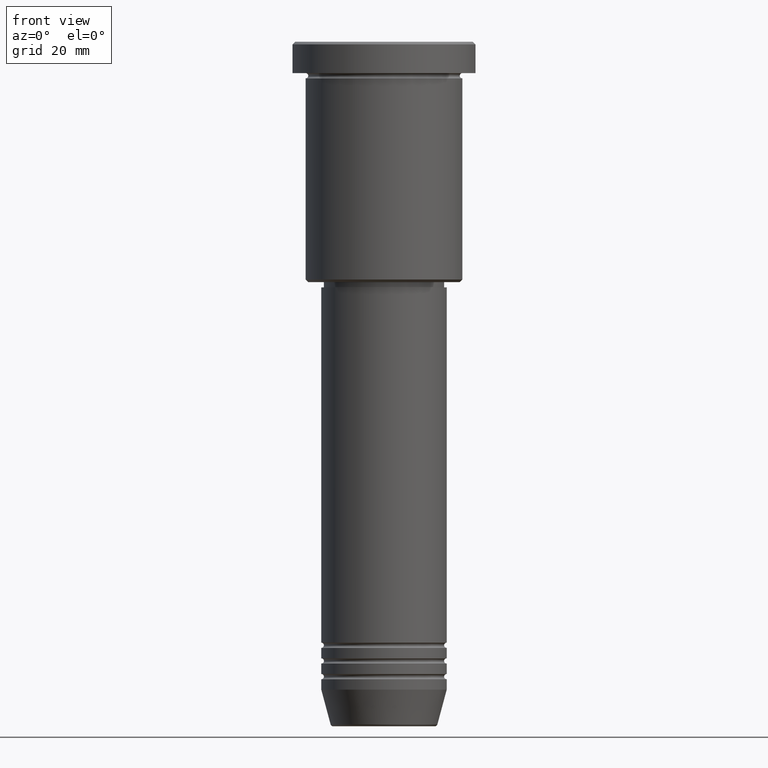
[diagram: clean part render]
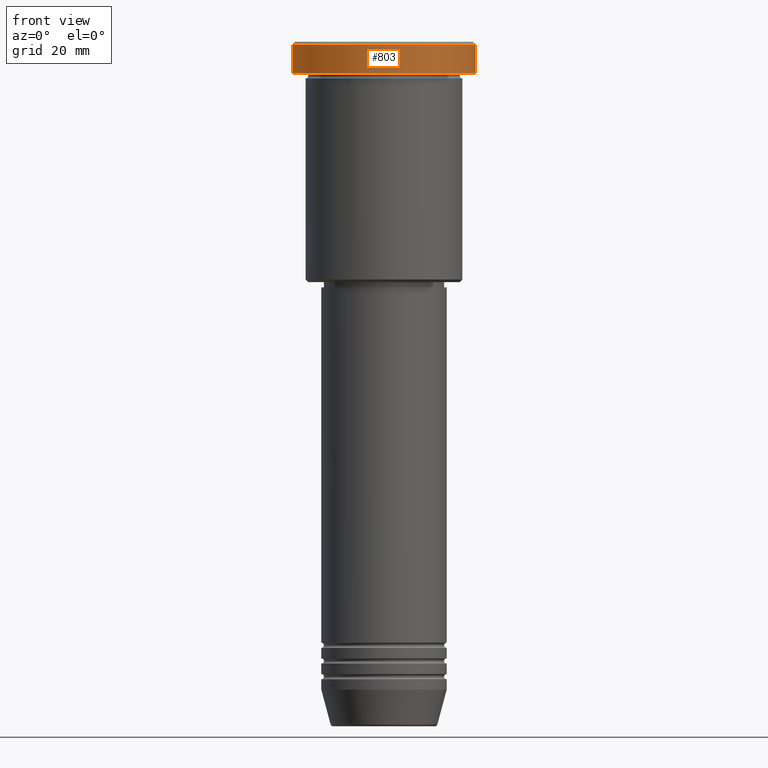
[diagram: same view with one face highlighted and labeled with its STEP entity id]
A machine part, front view. The second image highlights one B-rep face of the part: STEP entity #803.
In plain terms, the highlighted cylindrical surface (partial cylindrical patch) has radius 17.5 mm, axis along (-0, -0, 1).
Its self-contained STEP definition (entity closure, byte-faithful):
#7 = AXIS2_PLACEMENT_3D ( 'NONE', #341, #694, #1058 ) ;
#63 = CIRCLE ( 'NONE', #743, 17.50000000000000000 ) ;
#64 = DIRECTION ( 'NONE',  ( 0.000000000000000000, 0.000000000000000000, -1.000000000000000000 ) ) ;
#102 = VECTOR ( 'NONE', #1024, 1000.000000000000000 ) ;
#127 = ORIENTED_EDGE ( 'NONE', *, *, #872, .T. ) ;
#139 = LINE ( 'NONE', #1135, #567 ) ;
#172 = CYLINDRICAL_SURFACE ( 'NONE', #7, 17.50000000000000000 ) ;
#188 = AXIS2_PLACEMENT_3D ( 'NONE', #510, #64, #978 ) ;
#262 = CARTESIAN_POINT ( 'NONE',  ( 0.000000000000000000, 0.000000000000000000, -5.999999999999995559 ) ) ;
#279 = CARTESIAN_POINT ( 'NONE',  ( -17.50000000000000000, 2.143131898507868248E-15, -0.5000000000000003331 ) ) ;
#333 = EDGE_CURVE ( 'NONE', #968, #976, #139, .T. ) ;
#341 = CARTESIAN_POINT ( 'NONE',  ( 0.000000000000000000, 0.000000000000000000, 0.000000000000000000 ) ) ;
#373 = CARTESIAN_POINT ( 'NONE',  ( 17.50000000000000000, 0.000000000000000000, -0.5000000000000003331 ) ) ;
#378 = LINE ( 'NONE', #392, #102 ) ;
#392 = CARTESIAN_POINT ( 'NONE',  ( 17.50000000000000000, 0.000000000000000000, 0.000000000000000000 ) ) ;
#479 = CIRCLE ( 'NONE', #188, 17.50000000000000000 ) ;
#492 = ORIENTED_EDGE ( 'NONE', *, *, #757, .T. ) ;
#503 = VERTEX_POINT ( 'NONE', #373 ) ;
#510 = CARTESIAN_POINT ( 'NONE',  ( 0.000000000000000000, 0.000000000000000000, -0.5000000000000003331 ) ) ;
#542 = DIRECTION ( 'NONE',  ( -0.000000000000000000, -0.000000000000000000, 1.000000000000000000 ) ) ;
#567 = VECTOR ( 'NONE', #849, 1000.000000000000000 ) ;
#604 = FACE_OUTER_BOUND ( 'NONE', #1102, .T. ) ;
#617 = CARTESIAN_POINT ( 'NONE',  ( 17.50000000000000000, 0.000000000000000000, -5.999999999999995559 ) ) ;
#694 = DIRECTION ( 'NONE',  ( -0.000000000000000000, -0.000000000000000000, 1.000000000000000000 ) ) ;
#743 = AXIS2_PLACEMENT_3D ( 'NONE', #262, #542, #899 ) ;
#757 = EDGE_CURVE ( 'NONE', #1047, #503, #378, .T. ) ;
#803 = ADVANCED_FACE ( 'NONE', ( #604 ), #172, .T. ) ;
#849 = DIRECTION ( 'NONE',  ( -0.000000000000000000, -0.000000000000000000, 1.000000000000000000 ) ) ;
#872 = EDGE_CURVE ( 'NONE', #503, #976, #479, .T. ) ;
#899 = DIRECTION ( 'NONE',  ( 1.000000000000000000, 0.000000000000000000, 0.000000000000000000 ) ) ;
#968 = VERTEX_POINT ( 'NONE', #1082 ) ;
#976 = VERTEX_POINT ( 'NONE', #279 ) ;
#978 = DIRECTION ( 'NONE',  ( 1.000000000000000000, 0.000000000000000000, 0.000000000000000000 ) ) ;
#1019 = ORIENTED_EDGE ( 'NONE', *, *, #333, .F. ) ;
#1024 = DIRECTION ( 'NONE',  ( -0.000000000000000000, -0.000000000000000000, 1.000000000000000000 ) ) ;
#1041 = EDGE_CURVE ( 'NONE', #968, #1047, #63, .T. ) ;
#1047 = VERTEX_POINT ( 'NONE', #617 ) ;
#1058 = DIRECTION ( 'NONE',  ( 1.000000000000000000, 0.000000000000000000, 0.000000000000000000 ) ) ;
#1082 = CARTESIAN_POINT ( 'NONE',  ( -17.50000000000000000, 2.143131898507868248E-15, -5.999999999999995559 ) ) ;
#1102 = EDGE_LOOP ( 'NONE', ( #1019, #1161, #492, #127 ) ) ;
#1135 = CARTESIAN_POINT ( 'NONE',  ( -17.50000000000000000, 2.143131898507868248E-15, 0.000000000000000000 ) ) ;
#1161 = ORIENTED_EDGE ( 'NONE', *, *, #1041, .T. ) ;